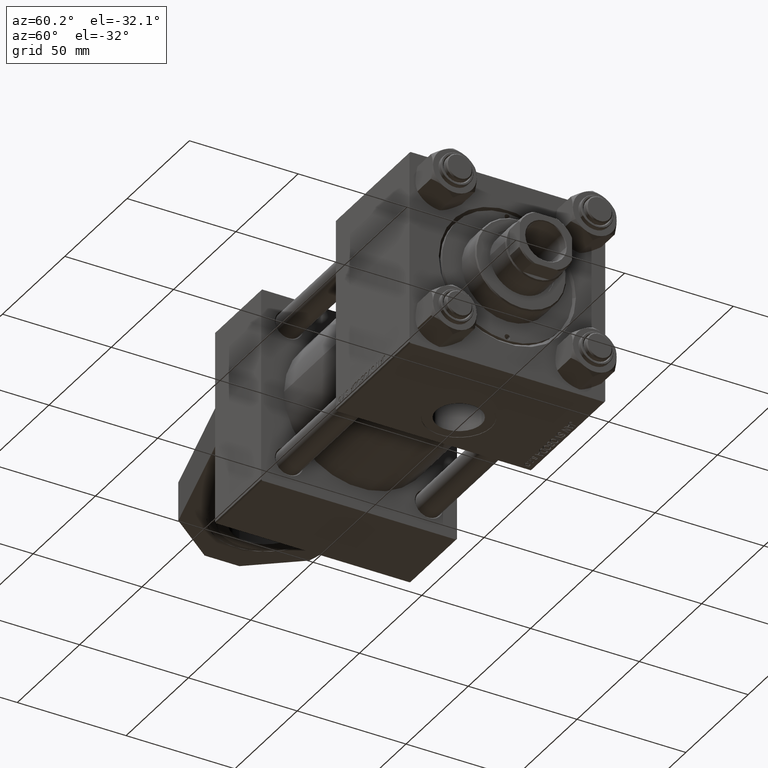
[diagram: clean part render]
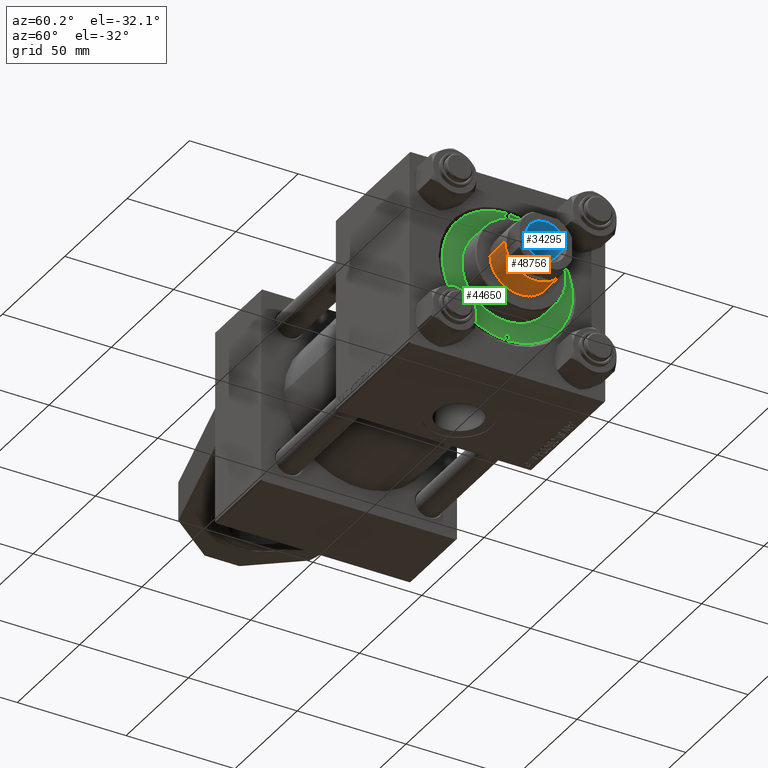
[diagram: same view with three faces highlighted in distinct colors, each labeled with its STEP entity id]
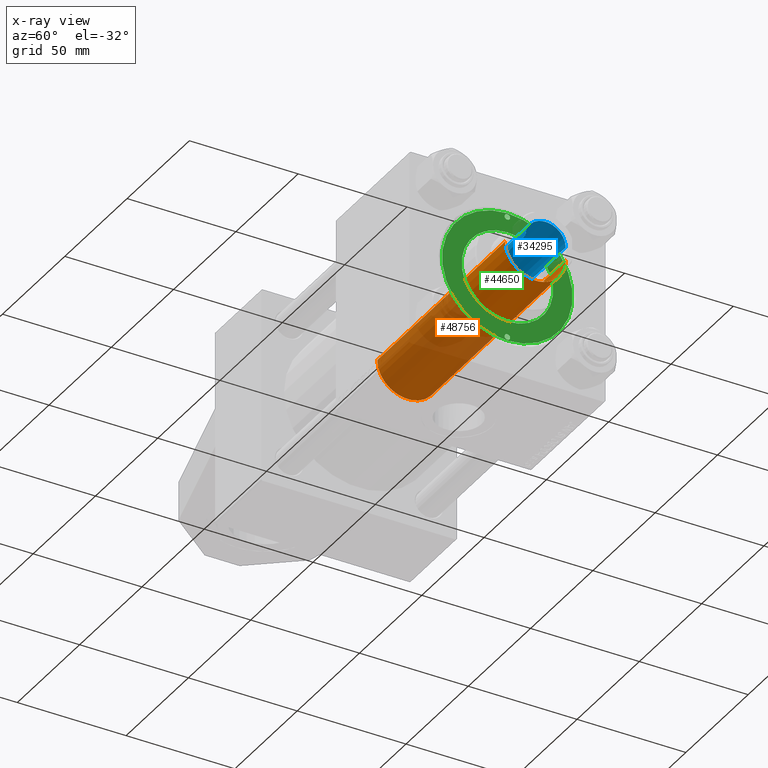
[diagram: x-ray of the same camera — body ghosted, the three highlighted faces saturated]
A machine part, auxiliary view with three faces highlighted in distinct colors.
The next image is the same camera in x-ray (body ghosted, the three faces saturated) — at least one of them is partly hidden behind the body in this view.
Their STEP definitions:

[orange] entity #48756 — the highlighted cylindrical surface (edge-blend (fillet) strip) has radius 14 mm, axis along (-1, 0, 0).
#498 = VERTEX_POINT ( 'NONE', #20207 ) ;
#1040 = EDGE_CURVE ( 'NONE', #40550, #498, #8128, .T. ) ;
#4459 = LINE ( 'NONE', #8406, #28348 ) ;
#6131 = CIRCLE ( 'NONE', #35452, 14.00000000000000178 ) ;
#6188 = DIRECTION ( 'NONE',  ( 0.000000000000000000, 0.000000000000000000, 1.000000000000000000 ) ) ;
#8128 = CIRCLE ( 'NONE', #8949, 14.00000000000000178 ) ;
#8406 = CARTESIAN_POINT ( 'NONE',  ( -14.00000000000000178, 0.000000000000000000, 142.0000000000000000 ) ) ;
#8464 = FACE_OUTER_BOUND ( 'NONE', #29675, .T. ) ;
#8949 = AXIS2_PLACEMENT_3D ( 'NONE', #27888, #24484, #43920 ) ;
#9355 = DIRECTION ( 'NONE',  ( 1.000000000000000000, 0.000000000000000000, 0.000000000000000000 ) ) ;
#9596 = ORIENTED_EDGE ( 'NONE', *, *, #1040, .T. ) ;
#11303 = DIRECTION ( 'NONE',  ( -0.000000000000000000, -0.000000000000000000, -1.000000000000000000 ) ) ;
#11360 = EDGE_CURVE ( 'NONE', #498, #14657, #20034, .T. ) ;
#13547 = ORIENTED_EDGE ( 'NONE', *, *, #11360, .T. ) ;
#13821 = CARTESIAN_POINT ( 'NONE',  ( 14.00000000000000178, 1.714505518806294835E-15, 39.00000000000000000 ) ) ;
#14657 = VERTEX_POINT ( 'NONE', #13821 ) ;
#19512 = EDGE_CURVE ( 'NONE', #14657, #39620, #6131, .T. ) ;
#20034 = LINE ( 'NONE', #36314, #47043 ) ;
#20207 = CARTESIAN_POINT ( 'NONE',  ( 14.00000000000000178, 1.714505518806294835E-15, 141.5000000000000000 ) ) ;
#21759 = CARTESIAN_POINT ( 'NONE',  ( -14.00000000000000178, 0.000000000000000000, 39.00000000000000000 ) ) ;
#23941 = DIRECTION ( 'NONE',  ( -0.000000000000000000, -0.000000000000000000, -1.000000000000000000 ) ) ;
#24459 = CARTESIAN_POINT ( 'NONE',  ( 0.000000000000000000, 0.000000000000000000, 142.0000000000000000 ) ) ;
#24484 = DIRECTION ( 'NONE',  ( 0.000000000000000000, 0.000000000000000000, -1.000000000000000000 ) ) ;
#25912 = ORIENTED_EDGE ( 'NONE', *, *, #39446, .F. ) ;
#27888 = CARTESIAN_POINT ( 'NONE',  ( 0.000000000000000000, 0.000000000000000000, 141.5000000000000000 ) ) ;
#28348 = VECTOR ( 'NONE', #11303, 1000.000000000000000 ) ;
#29675 = EDGE_LOOP ( 'NONE', ( #9596, #13547, #51907, #25912 ) ) ;
#35452 = AXIS2_PLACEMENT_3D ( 'NONE', #45315, #6188, #9355 ) ;
#36062 = DIRECTION ( 'NONE',  ( -0.000000000000000000, -0.000000000000000000, -1.000000000000000000 ) ) ;
#36314 = CARTESIAN_POINT ( 'NONE',  ( 14.00000000000000178, 1.714505518806294835E-15, 142.0000000000000000 ) ) ;
#38807 = CARTESIAN_POINT ( 'NONE',  ( -14.00000000000000178, 0.000000000000000000, 141.5000000000000000 ) ) ;
#39446 = EDGE_CURVE ( 'NONE', #40550, #39620, #4459, .T. ) ;
#39620 = VERTEX_POINT ( 'NONE', #21759 ) ;
#40550 = VERTEX_POINT ( 'NONE', #38807 ) ;
#43896 = CYLINDRICAL_SURFACE ( 'NONE', #48300, 14.00000000000000178 ) ;
#43920 = DIRECTION ( 'NONE',  ( 1.000000000000000000, 0.000000000000000000, 0.000000000000000000 ) ) ;
#45315 = CARTESIAN_POINT ( 'NONE',  ( 0.000000000000000000, 0.000000000000000000, 39.00000000000000000 ) ) ;
#47043 = VECTOR ( 'NONE', #36062, 1000.000000000000000 ) ;
#47569 = DIRECTION ( 'NONE',  ( -1.000000000000000000, 0.000000000000000000, 0.000000000000000000 ) ) ;
#48300 = AXIS2_PLACEMENT_3D ( 'NONE', #24459, #23941, #47569 ) ;
#48756 = ADVANCED_FACE ( 'NONE', ( #8464 ), #43896, .T. ) ;
#51907 = ORIENTED_EDGE ( 'NONE', *, *, #19512, .T. ) ;

[blue] entity #34295 — the highlighted cylindrical surface (edge-blend (fillet) strip) has radius 9.25 mm, axis along (1, 0, 0).
#3133 = DIRECTION ( 'NONE',  ( -0.000000000000000000, -0.000000000000000000, 1.000000000000000000 ) ) ;
#3176 = CARTESIAN_POINT ( 'NONE',  ( 0.000000000000000000, 0.000000000000000000, 150.0000000000000000 ) ) ;
#3246 = EDGE_CURVE ( 'NONE', #19788, #20127, #27533, .T. ) ;
#7310 = CIRCLE ( 'NONE', #9826, 9.249999999999994671 ) ;
#9826 = AXIS2_PLACEMENT_3D ( 'NONE', #22878, #27315, #47532 ) ;
#10248 = AXIS2_PLACEMENT_3D ( 'NONE', #50853, #10969, #19604 ) ;
#10969 = DIRECTION ( 'NONE',  ( -0.000000000000000000, -0.000000000000000000, 1.000000000000000000 ) ) ;
#11494 = CARTESIAN_POINT ( 'NONE',  ( 9.249999999999994671, 0.000000000000000000, 149.6999999999999886 ) ) ;
#11577 = DIRECTION ( 'NONE',  ( -0.000000000000000000, -0.000000000000000000, 1.000000000000000000 ) ) ;
#12774 = CIRCLE ( 'NONE', #10248, 9.249999999999992895 ) ;
#13593 = DIRECTION ( 'NONE',  ( -0.000000000000000000, -0.000000000000000000, 1.000000000000000000 ) ) ;
#14461 = ORIENTED_EDGE ( 'NONE', *, *, #3246, .F. ) ;
#18752 = ORIENTED_EDGE ( 'NONE', *, *, #35238, .T. ) ;
#19351 = CARTESIAN_POINT ( 'NONE',  ( -9.249999999999994671, 1.132798289211300909E-15, 149.6999999999999886 ) ) ;
#19604 = DIRECTION ( 'NONE',  ( 1.000000000000000000, 0.000000000000000000, 0.000000000000000000 ) ) ;
#19788 = VERTEX_POINT ( 'NONE', #34208 ) ;
#20127 = VERTEX_POINT ( 'NONE', #11494 ) ;
#20183 = EDGE_CURVE ( 'NONE', #45144, #19788, #12774, .T. ) ;
#21715 = LINE ( 'NONE', #26161, #49808 ) ;
#22878 = CARTESIAN_POINT ( 'NONE',  ( 0.000000000000000000, 0.000000000000000000, 149.6999999999999886 ) ) ;
#23387 = CYLINDRICAL_SURFACE ( 'NONE', #25706, 9.249999999999994671 ) ;
#25119 = EDGE_CURVE ( 'NONE', #45144, #32746, #21715, .T. ) ;
#25706 = AXIS2_PLACEMENT_3D ( 'NONE', #3176, #11577, #43333 ) ;
#26161 = CARTESIAN_POINT ( 'NONE',  ( -9.249999999999994671, 1.132798289211300909E-15, 150.0000000000000000 ) ) ;
#26488 = CARTESIAN_POINT ( 'NONE',  ( 9.249999999999994671, 0.000000000000000000, 150.0000000000000000 ) ) ;
#27315 = DIRECTION ( 'NONE',  ( 0.000000000000000000, 0.000000000000000000, 1.000000000000000000 ) ) ;
#27533 = LINE ( 'NONE', #26488, #48434 ) ;
#28071 = CARTESIAN_POINT ( 'NONE',  ( -9.249999999999992895, 1.132798289211300712E-15, 114.9999999999999858 ) ) ;
#30632 = ORIENTED_EDGE ( 'NONE', *, *, #25119, .T. ) ;
#32746 = VERTEX_POINT ( 'NONE', #19351 ) ;
#34208 = CARTESIAN_POINT ( 'NONE',  ( 9.249999999999992895, 0.000000000000000000, 114.9999999999999858 ) ) ;
#34295 = ADVANCED_FACE ( 'NONE', ( #47007 ), #23387, .F. ) ;
#35238 = EDGE_CURVE ( 'NONE', #32746, #20127, #7310, .T. ) ;
#36861 = ORIENTED_EDGE ( 'NONE', *, *, #20183, .F. ) ;
#43333 = DIRECTION ( 'NONE',  ( 1.000000000000000000, 0.000000000000000000, 0.000000000000000000 ) ) ;
#45144 = VERTEX_POINT ( 'NONE', #28071 ) ;
#47007 = FACE_OUTER_BOUND ( 'NONE', #48477, .T. ) ;
#47532 = DIRECTION ( 'NONE',  ( 1.000000000000000000, 0.000000000000000000, 0.000000000000000000 ) ) ;
#48434 = VECTOR ( 'NONE', #3133, 1000.000000000000000 ) ;
#48477 = EDGE_LOOP ( 'NONE', ( #36861, #30632, #18752, #14461 ) ) ;
#49808 = VECTOR ( 'NONE', #13593, 1000.000000000000000 ) ;
#50853 = CARTESIAN_POINT ( 'NONE',  ( 0.000000000000000000, 0.000000000000000000, 114.9999999999999858 ) ) ;

[green] entity #44650 — the highlighted planar face has unit normal (1, 0, 0).
#276 = CARTESIAN_POINT ( 'NONE',  ( 29.50000000000000000, 0.000000000000000000, 26.69999999999999929 ) ) ;
#567 = AXIS2_PLACEMENT_3D ( 'NONE', #27109, #6922, #47065 ) ;
#780 = VERTEX_POINT ( 'NONE', #4606 ) ;
#1218 = ORIENTED_EDGE ( 'NONE', *, *, #16140, .F. ) ;
#1360 = DIRECTION ( 'NONE',  ( 1.000000000000000000, 0.000000000000000000, 0.000000000000000000 ) ) ;
#2691 = CARTESIAN_POINT ( 'NONE',  ( -28.25000000000000000, 0.000000000000000000, 26.69999999999999929 ) ) ;
#2954 = EDGE_LOOP ( 'NONE', ( #4319, #11214 ) ) ;
#3537 = AXIS2_PLACEMENT_3D ( 'NONE', #49125, #45707, #1360 ) ;
#4319 = ORIENTED_EDGE ( 'NONE', *, *, #27288, .F. ) ;
#4606 = CARTESIAN_POINT ( 'NONE',  ( -30.00000000000000000, 0.000000000000000000, 26.69999999999999929 ) ) ;
#4985 = EDGE_CURVE ( 'NONE', #780, #44838, #22504, .T. ) ;
#5597 = CIRCLE ( 'NONE', #567, 1.249999999999997558 ) ;
#5633 = FACE_OUTER_BOUND ( 'NONE', #38447, .T. ) ;
#5878 = DIRECTION ( 'NONE',  ( 1.000000000000000000, 0.000000000000000000, 0.000000000000000000 ) ) ;
#6018 = AXIS2_PLACEMENT_3D ( 'NONE', #23414, #43366, #43878 ) ;
#6445 = ORIENTED_EDGE ( 'NONE', *, *, #4985, .T. ) ;
#6922 = DIRECTION ( 'NONE',  ( 0.000000000000000000, 0.000000000000000000, 1.000000000000000000 ) ) ;
#8020 = EDGE_CURVE ( 'NONE', #31959, #11103, #10900, .T. ) ;
#9850 = DIRECTION ( 'NONE',  ( 1.000000000000000000, 0.000000000000000000, 0.000000000000000000 ) ) ;
#9877 = CARTESIAN_POINT ( 'NONE',  ( 27.00000000000000355, 1.530808498934192803E-16, 26.69999999999999929 ) ) ;
#10413 = EDGE_LOOP ( 'NONE', ( #28446, #21279 ) ) ;
#10900 = CIRCLE ( 'NONE', #35208, 21.00000000000000000 ) ;
#11103 = VERTEX_POINT ( 'NONE', #51931 ) ;
#11114 = CIRCLE ( 'NONE', #21975, 1.249999999999997558 ) ;
#11214 = ORIENTED_EDGE ( 'NONE', *, *, #8020, .F. ) ;
#11364 = AXIS2_PLACEMENT_3D ( 'NONE', #42062, #49410, #21309 ) ;
#11906 = AXIS2_PLACEMENT_3D ( 'NONE', #34514, #42401, #13805 ) ;
#12563 = EDGE_CURVE ( 'NONE', #43799, #19558, #18585, .T. ) ;
#13511 = CARTESIAN_POINT ( 'NONE',  ( 0.000000000000000000, 0.000000000000000000, 26.69999999999999929 ) ) ;
#13805 = DIRECTION ( 'NONE',  ( 1.000000000000000000, 0.000000000000000000, 0.000000000000000000 ) ) ;
#14283 = DIRECTION ( 'NONE',  ( 1.000000000000000000, 0.000000000000000000, -0.000000000000000000 ) ) ;
#15631 = DIRECTION ( 'NONE',  ( 1.000000000000000000, 0.000000000000000000, 0.000000000000000000 ) ) ;
#15894 = DIRECTION ( 'NONE',  ( 0.000000000000000000, 0.000000000000000000, 1.000000000000000000 ) ) ;
#16140 = EDGE_CURVE ( 'NONE', #19558, #43799, #24445, .T. ) ;
#16898 = EDGE_CURVE ( 'NONE', #30440, #35234, #11114, .T. ) ;
#18585 = CIRCLE ( 'NONE', #11906, 1.249999999999997558 ) ;
#18691 = DIRECTION ( 'NONE',  ( 0.000000000000000000, 0.000000000000000000, 1.000000000000000000 ) ) ;
#19158 = AXIS2_PLACEMENT_3D ( 'NONE', #41355, #21381, #9850 ) ;
#19558 = VERTEX_POINT ( 'NONE', #9877 ) ;
#20993 = EDGE_CURVE ( 'NONE', #44838, #780, #44607, .T. ) ;
#21279 = ORIENTED_EDGE ( 'NONE', *, *, #16898, .F. ) ;
#21309 = DIRECTION ( 'NONE',  ( 1.000000000000000000, 0.000000000000000000, 0.000000000000000000 ) ) ;
#21381 = DIRECTION ( 'NONE',  ( 0.000000000000000000, 0.000000000000000000, 1.000000000000000000 ) ) ;
#21975 = AXIS2_PLACEMENT_3D ( 'NONE', #2691, #18691, #5878 ) ;
#22504 = CIRCLE ( 'NONE', #19158, 30.00000000000000000 ) ;
#22954 = CARTESIAN_POINT ( 'NONE',  ( 21.00000000000000000, 2.571758278209441661E-15, 26.69999999999999929 ) ) ;
#23414 = CARTESIAN_POINT ( 'NONE',  ( 28.25000000000000000, 0.000000000000000000, 26.69999999999999929 ) ) ;
#24445 = CIRCLE ( 'NONE', #6018, 1.249999999999997558 ) ;
#25566 = FACE_BOUND ( 'NONE', #2954, .T. ) ;
#27109 = CARTESIAN_POINT ( 'NONE',  ( -28.25000000000000000, 0.000000000000000000, 26.69999999999999929 ) ) ;
#27288 = EDGE_CURVE ( 'NONE', #11103, #31959, #28084, .T. ) ;
#28084 = CIRCLE ( 'NONE', #11364, 21.00000000000000000 ) ;
#28446 = ORIENTED_EDGE ( 'NONE', *, *, #34093, .F. ) ;
#29834 = CARTESIAN_POINT ( 'NONE',  ( -29.50000000000000000, 1.530808498934192803E-16, 26.69999999999999929 ) ) ;
#30440 = VERTEX_POINT ( 'NONE', #29834 ) ;
#31959 = VERTEX_POINT ( 'NONE', #22954 ) ;
#34093 = EDGE_CURVE ( 'NONE', #35234, #30440, #5597, .T. ) ;
#34471 = DIRECTION ( 'NONE',  ( 0.000000000000000000, 0.000000000000000000, 1.000000000000000000 ) ) ;
#34514 = CARTESIAN_POINT ( 'NONE',  ( 28.25000000000000000, 0.000000000000000000, 26.69999999999999929 ) ) ;
#35208 = AXIS2_PLACEMENT_3D ( 'NONE', #35843, #15894, #15631 ) ;
#35234 = VERTEX_POINT ( 'NONE', #43084 ) ;
#35613 = AXIS2_PLACEMENT_3D ( 'NONE', #13511, #34471, #14283 ) ;
#35843 = CARTESIAN_POINT ( 'NONE',  ( 0.000000000000000000, 0.000000000000000000, 26.69999999999999929 ) ) ;
#36030 = CARTESIAN_POINT ( 'NONE',  ( 30.00000000000000000, 3.673940397442059178E-15, 26.69999999999999929 ) ) ;
#37650 = FACE_BOUND ( 'NONE', #10413, .T. ) ;
#38418 = PLANE ( 'NONE',  #35613 ) ;
#38447 = EDGE_LOOP ( 'NONE', ( #6445, #45742 ) ) ;
#41355 = CARTESIAN_POINT ( 'NONE',  ( 0.000000000000000000, 0.000000000000000000, 26.69999999999999929 ) ) ;
#42062 = CARTESIAN_POINT ( 'NONE',  ( 0.000000000000000000, 0.000000000000000000, 26.69999999999999929 ) ) ;
#42401 = DIRECTION ( 'NONE',  ( 0.000000000000000000, 0.000000000000000000, 1.000000000000000000 ) ) ;
#43084 = CARTESIAN_POINT ( 'NONE',  ( -27.00000000000000355, 0.000000000000000000, 26.69999999999999929 ) ) ;
#43366 = DIRECTION ( 'NONE',  ( 0.000000000000000000, 0.000000000000000000, 1.000000000000000000 ) ) ;
#43378 = EDGE_LOOP ( 'NONE', ( #47791, #1218 ) ) ;
#43799 = VERTEX_POINT ( 'NONE', #276 ) ;
#43878 = DIRECTION ( 'NONE',  ( 1.000000000000000000, 0.000000000000000000, 0.000000000000000000 ) ) ;
#44607 = CIRCLE ( 'NONE', #3537, 30.00000000000000000 ) ;
#44650 = ADVANCED_FACE ( 'NONE', ( #37650, #45520, #25566, #5633 ), #38418, .T. ) ;
#44838 = VERTEX_POINT ( 'NONE', #36030 ) ;
#45520 = FACE_BOUND ( 'NONE', #43378, .T. ) ;
#45707 = DIRECTION ( 'NONE',  ( 0.000000000000000000, 0.000000000000000000, 1.000000000000000000 ) ) ;
#45742 = ORIENTED_EDGE ( 'NONE', *, *, #20993, .T. ) ;
#47065 = DIRECTION ( 'NONE',  ( 1.000000000000000000, 0.000000000000000000, 0.000000000000000000 ) ) ;
#47791 = ORIENTED_EDGE ( 'NONE', *, *, #12563, .F. ) ;
#49125 = CARTESIAN_POINT ( 'NONE',  ( 0.000000000000000000, 0.000000000000000000, 26.69999999999999929 ) ) ;
#49410 = DIRECTION ( 'NONE',  ( 0.000000000000000000, 0.000000000000000000, 1.000000000000000000 ) ) ;
#51931 = CARTESIAN_POINT ( 'NONE',  ( -21.00000000000000000, 0.000000000000000000, 26.69999999999999929 ) ) ;